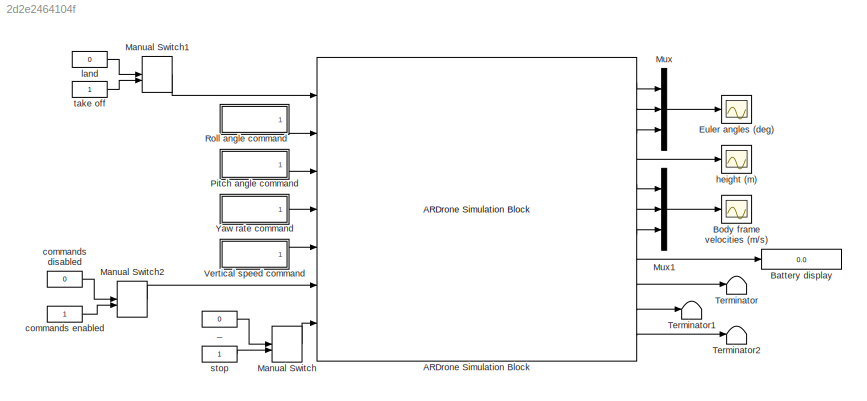
MODEL slx_2d2e2464104f
KIND model
BLOCK [Reference] ARDrone Simulation Block  REF=ARBlocks/ARDrone Simulation Block
  Ports = [7, 11]
  SourceBlock = ARBlocks/ARDrone Simulation Block
  SourceType = SubSystem
BLOCK [Display] Battery display
  Decimation = 1
  Ports = [1]
BLOCK [Scope] Body frame velocities (m//s)
  DataFormat = StructureWithTime
  Floating = off
  MaxDataPoints = 500000
  NumInputPorts = 1
  Ports = [1]
  SampleTime = 0
  SaveName = ScopeData2
  ShowLegends = off
  YMax = 22.5
  YMin = -22.5
BLOCK [Scope] Euler angles (deg)
  DataFormat = StructureWithTime
  Floating = off
  MaxDataPoints = 500000
  NumInputPorts = 1
  Ports = [1]
  SampleTime = 0
  ShowLegends = off
  YMax = 22.5
  YMin = -22.5
BLOCK [ManualSwitch] Manual Switch
BLOCK [ManualSwitch] Manual Switch1
BLOCK [ManualSwitch] Manual Switch2
BLOCK [Mux] Mux
  DisplayOption = bar
  Inputs = 3
  Ports = [3, 1]
BLOCK [Mux] Mux1
  DisplayOption = bar
  Inputs = 3
  Ports = [3, 1]
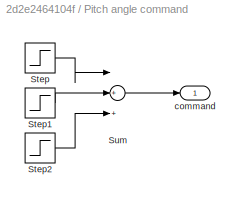
BLOCK [SubSystem] Pitch angle command
  FunctionWithSeparateData = off
  MaskHideContents = off
  MinAlgLoopOccurrences = off
  Opaque = off
  Ports = [0, 1]
  PropExecContextOutsideSubsystem = off
  RTWSystemCode = Auto
  RequestExecContextInheritance = off
BLOCK [Step] Pitch angle command/Step
  SampleTime = 0
  Time = 14
BLOCK [Step] Pitch angle command/Step1
  After = -2
  SampleTime = 0
  Time = 18
BLOCK [Step] Pitch angle command/Step2
  SampleTime = 0
  Time = 22
BLOCK [Sum] Pitch angle command/Sum
  InputSameDT = off
  Inputs = |+++
  OutDataTypeStr = Inherit: Inherit via internal rule
  Ports = [3, 1]
  SaturateOnIntegerOverflow = off
BLOCK [Outport] Pitch angle command/command
  IconDisplay = Port number
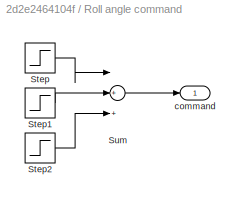
BLOCK [SubSystem] Roll angle command
  FunctionWithSeparateData = off
  MaskHideContents = off
  MinAlgLoopOccurrences = off
  Opaque = off
  Ports = [0, 1]
  PropExecContextOutsideSubsystem = off
  RTWSystemCode = Auto
  RequestExecContextInheritance = off
BLOCK [Step] Roll angle command/Step
  SampleTime = 0
  Time = 2
BLOCK [Step] Roll angle command/Step1
  After = -2
  SampleTime = 0
  Time = 6
BLOCK [Step] Roll angle command/Step2
  SampleTime = 0
  Time = 10
BLOCK [Sum] Roll angle command/Sum
  InputSameDT = off
  Inputs = |+++
  OutDataTypeStr = Inherit: Inherit via internal rule
  Ports = [3, 1]
  SaturateOnIntegerOverflow = off
BLOCK [Outport] Roll angle command/command
  IconDisplay = Port number
BLOCK [Terminator] Terminator
BLOCK [Terminator] Terminator1
BLOCK [Terminator] Terminator2
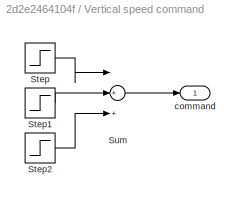
BLOCK [SubSystem] Vertical speed command
  FunctionWithSeparateData = off
  MaskHideContents = off
  MinAlgLoopOccurrences = off
  Opaque = off
  Ports = [0, 1]
  PropExecContextOutsideSubsystem = off
  RTWSystemCode = Auto
  RequestExecContextInheritance = off
BLOCK [Step] Vertical speed command/Step
  SampleTime = 0
  Time = 34
BLOCK [Step] Vertical speed command/Step1
  After = -2
  SampleTime = 0
  Time = 36
BLOCK [Step] Vertical speed command/Step2
  SampleTime = 0
  Time = 38
BLOCK [Sum] Vertical speed command/Sum
  InputSameDT = off
  Inputs = |+++
  OutDataTypeStr = Inherit: Inherit via internal rule
  Ports = [3, 1]
  SaturateOnIntegerOverflow = off
BLOCK [Outport] Vertical speed command/command
  IconDisplay = Port number
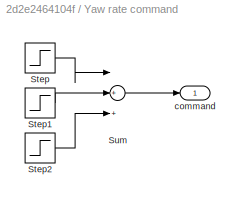
BLOCK [SubSystem] Yaw rate command
  FunctionWithSeparateData = off
  MaskHideContents = off
  MinAlgLoopOccurrences = off
  Opaque = off
  Ports = [0, 1]
  PropExecContextOutsideSubsystem = off
  RTWSystemCode = Auto
  RequestExecContextInheritance = off
BLOCK [Step] Yaw rate command/Step
  SampleTime = 0
  Time = 26
BLOCK [Step] Yaw rate command/Step1
  After = -2
  SampleTime = 0
  Time = 28
BLOCK [Step] Yaw rate command/Step2
  SampleTime = 0
  Time = 30
BLOCK [Sum] Yaw rate command/Sum
  InputSameDT = off
  Inputs = |+++
  OutDataTypeStr = Inherit: Inherit via internal rule
  Ports = [3, 1]
  SaturateOnIntegerOverflow = off
BLOCK [Outport] Yaw rate command/command
  IconDisplay = Port number
BLOCK [Constant] _
  Value = 0
BLOCK [Constant] commands disabled
  Value = 0
BLOCK [Constant] commands enabled
BLOCK [Scope] height (m)
  DataFormat = StructureWithTime
  Floating = off
  MaxDataPoints = 500000
  NumInputPorts = 1
  Ports = [1]
  SampleTime = 0
  SaveName = ScopeData1
  ShowLegends = off
  YMax = 22.5
  YMin = -22.5
BLOCK [Constant] land
  Value = 0
BLOCK [Constant] stop
BLOCK [Constant] take off
LINE ARDrone Simulation Block:1 -> Mux:1
LINE ARDrone Simulation Block:10 -> Terminator1:1
LINE ARDrone Simulation Block:11 -> Terminator2:1
LINE ARDrone Simulation Block:2 -> Mux:2
LINE ARDrone Simulation Block:3 -> Mux:3
LINE ARDrone Simulation Block:4 -> height (m):1
LINE ARDrone Simulation Block:5 -> Mux1:1
LINE ARDrone Simulation Block:6 -> Mux1:2
LINE ARDrone Simulation Block:7 -> Mux1:3
LINE ARDrone Simulation Block:8 -> Battery display:1
LINE ARDrone Simulation Block:9 -> Terminator:1
LINE Manual Switch1:1 -> ARDrone Simulation Block:1
LINE Manual Switch2:1 -> ARDrone Simulation Block:6
LINE Manual Switch:1 -> ARDrone Simulation Block:7
LINE Mux1:1 -> Body frame velocities (m//s):1
LINE Mux:1 -> Euler angles (deg):1
LINE Pitch angle command/Step1:1 -> Pitch angle command/Sum:2
LINE Pitch angle command/Step2:1 -> Pitch angle command/Sum:3
LINE Pitch angle command/Step:1 -> Pitch angle command/Sum:1
LINE Pitch angle command/Sum:1 -> Pitch angle command/command:1
LINE Pitch angle command:1 -> ARDrone Simulation Block:3
LINE Roll angle command/Step1:1 -> Roll angle command/Sum:2
LINE Roll angle command/Step2:1 -> Roll angle command/Sum:3
LINE Roll angle command/Step:1 -> Roll angle command/Sum:1
LINE Roll angle command/Sum:1 -> Roll angle command/command:1
LINE Roll angle command:1 -> ARDrone Simulation Block:2
LINE Vertical speed command/Step1:1 -> Vertical speed command/Sum:2
LINE Vertical speed command/Step2:1 -> Vertical speed command/Sum:3
LINE Vertical speed command/Step:1 -> Vertical speed command/Sum:1
LINE Vertical speed command/Sum:1 -> Vertical speed command/command:1
LINE Vertical speed command:1 -> ARDrone Simulation Block:5
LINE Yaw rate command/Step1:1 -> Yaw rate command/Sum:2
LINE Yaw rate command/Step2:1 -> Yaw rate command/Sum:3
LINE Yaw rate command/Step:1 -> Yaw rate command/Sum:1
LINE Yaw rate command/Sum:1 -> Yaw rate command/command:1
LINE Yaw rate command:1 -> ARDrone Simulation Block:4
LINE _:1 -> Manual Switch:1
LINE commands disabled:1 -> Manual Switch2:1
LINE commands enabled:1 -> Manual Switch2:2
LINE land:1 -> Manual Switch1:1
LINE stop:1 -> Manual Switch:2
LINE take off:1 -> Manual Switch1:2
